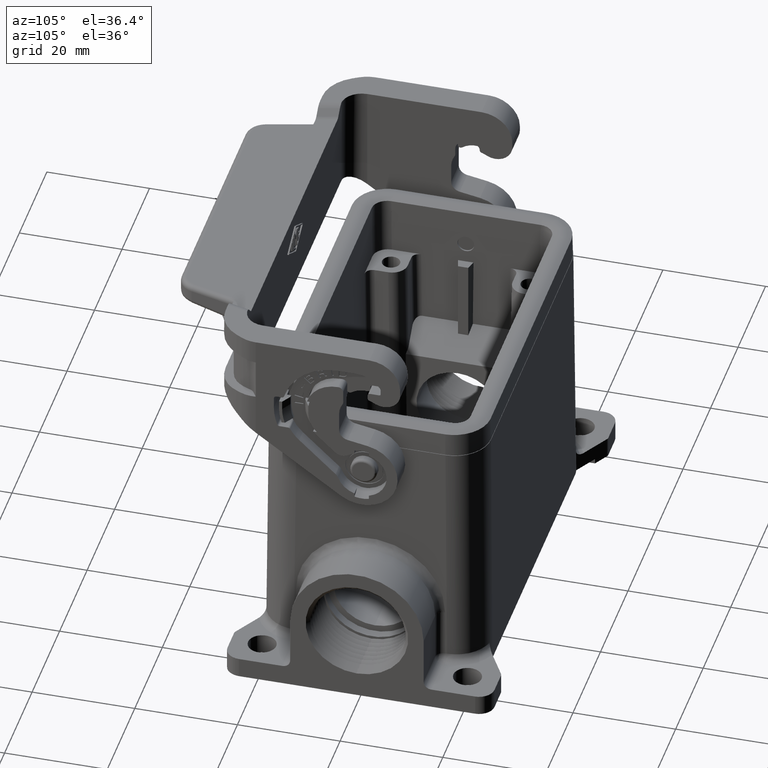
[diagram: clean part render]
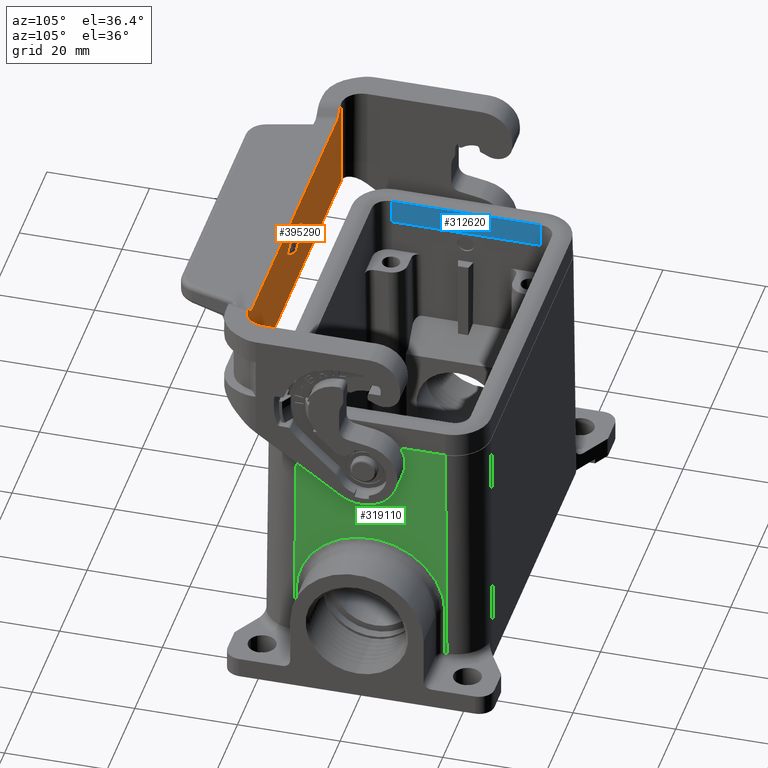
[diagram: same view with three faces highlighted in distinct colors, each labeled with its STEP entity id]
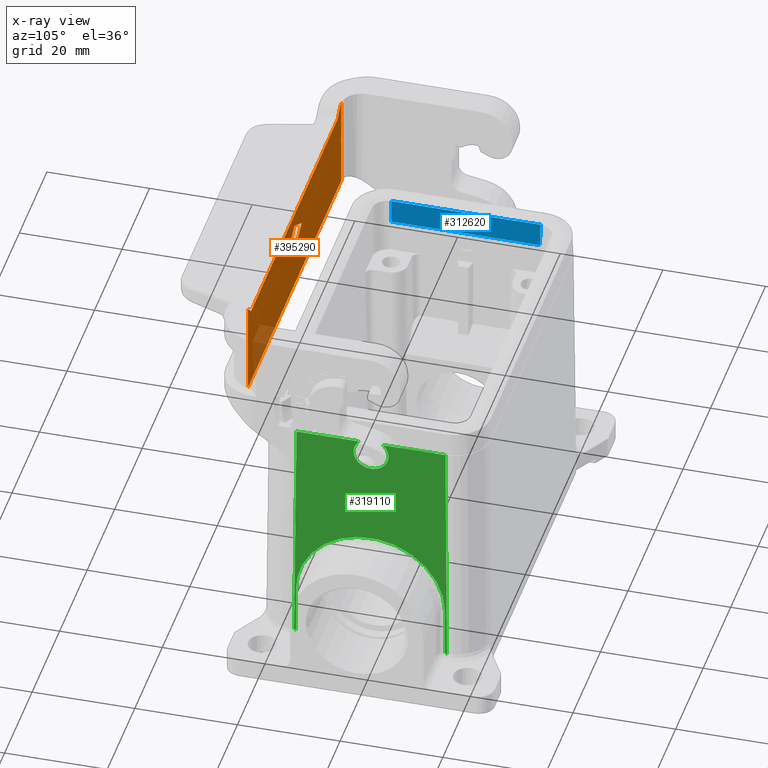
[diagram: x-ray of the same camera — body ghosted, the three highlighted faces saturated]
A machine part, auxiliary view with three faces highlighted in distinct colors.
The next image is the same camera in x-ray (body ghosted, the three faces saturated) — at least one of them is partly hidden behind the body in this view.
Their STEP definitions:

[orange] entity #395290 — the highlighted planar face has unit normal (-0, -1, 0).
#277350=CARTESIAN_POINT('',(66.5749300000854,8.52173468283081,
22.5000000000487));
#277360=VERTEX_POINT('',#277350);
#277410=CARTESIAN_POINT('',(66.5749300000854,-16.057090717364,
22.5000000000487));
#277420=DIRECTION('',(-2.2186712959341E-30,-1.,5.30477996090278E-16));
#277430=VECTOR('',#277420,1.);
#277440=LINE('',#277410,#277430);
#277450=CARTESIAN_POINT('',(66.5749300000857,71.2929093171692,
22.5000000000486));
#277460=VERTEX_POINT('',#277450);
#277470=EDGE_CURVE('',#277460,#277360,#277440,.T.);
#342020=CARTESIAN_POINT('',(66.5749300000855,-26.3070907173639,
-71.7743606791207));
#342030=DIRECTION('',(1.61461529201902E-15,-0.719254596676405,
-0.694746590606865));
#342040=VECTOR('',#342030,1.);
#342050=LINE('',#342020,#342040);
#342060=CARTESIAN_POINT('',(66.5749300000853,72.7570109323068,
23.9142135624216));
#342070=VERTEX_POINT('',#342060);
#342080=EDGE_CURVE('',#342070,#277460,#342050,.T.);
#393080=CARTESIAN_POINT('',(66.5749300000854,5.69290928263613,
24.4338279860379));
#393090=VERTEX_POINT('',#393080);
#393190=CARTESIAN_POINT('',(66.5749300000854,5.69290928263609,
6.28471444941555));
#393200=VERTEX_POINT('',#393190);
#393230=CARTESIAN_POINT('',(66.5749300000851,5.69290928263633,
131.732226182514));
#393240=DIRECTION('',(2.22754688718613E-15,-1.90949043772846E-15,-1.));
#393250=VECTOR('',#393240,1.);
#393260=LINE('',#393230,#393250);
#393270=EDGE_CURVE('',#393090,#393200,#393260,.T.);
#393480=CARTESIAN_POINT('',(66.5749300000855,7.78968387526194,
22.7928932188621));
#393490=VERTEX_POINT('',#393480);
#393540=CARTESIAN_POINT('',(66.5749300000854,8.5217346828308,
23.5000000000487));
#393550=DIRECTION('',(1.,-9.36772324949952E-31,2.22754688718613E-15));
#393560=DIRECTION('',(-1.8735446498999E-30,-1.,4.22498147828761E-16));
#393570=AXIS2_PLACEMENT_3D('',#393540,#393550,#393560);
#393580=ELLIPSE('',#393570,1.03527618041008,1.);
#393590=EDGE_CURVE('',#393490,#277360,#393580,.T.);
#393900=CARTESIAN_POINT('',(66.5749300000855,6.62880763296551,
23.9142135624216));
#393910=VERTEX_POINT('',#393900);
#393940=CARTESIAN_POINT('',(66.5749300000854,-5.80709071736398,
35.9263689521105));
#393950=DIRECTION('',(1.54373893237295E-15,0.719254596676404,
-0.694746590606866));
#393960=VECTOR('',#393950,1.);
#393970=LINE('',#393940,#393960);
#393980=EDGE_CURVE('',#393910,#393490,#393970,.T.);
#394170=CARTESIAN_POINT('',(66.5749300000854,-5.30709097970838,
11.4173116978688));
#394180=DIRECTION('',(1.,-9.38399073869837E-31,2.22754688718613E-15));
#394190=DIRECTION('',(-2.12006368278147E-30,-1.,5.30477996090278E-16));
#394200=AXIS2_PLACEMENT_3D('',#394170,#394180,#394190);
#394210=PLANE('',#394200);
#394220=CARTESIAN_POINT('',(66.5749300000854,39.6929092826362,
19.6923572247321));
#394230=DIRECTION('',(-1.,9.12120421661795E-31,-2.22754688718613E-15));
#394240=DIRECTION('',(-9.12120421661795E-31,-1.,-9.86076131526265E-32));
#394250=AXIS2_PLACEMENT_3D('',#394220,#394230,#394240);
#394260=CIRCLE('',#394250,0.199999999999962);
#394270=CARTESIAN_POINT('',(66.5749300000854,39.5936584446988,
19.8659926795468));
#394280=VERTEX_POINT('',#394270);
#394290=CARTESIAN_POINT('',(66.5749300000854,39.7921584503296,
19.8659936342554));
#394300=VERTEX_POINT('',#394290);
#394310=EDGE_CURVE('',#394280,#394300,#394260,.T.);
#394320=ORIENTED_EDGE('',*,*,#394310,.F.);
#394330=CARTESIAN_POINT('',(66.5749300000853,-16.057090717364,
51.78897287237));
#394340=DIRECTION('',(-1.15133348991819E-15,-0.868182047616834,
0.496245838467025));
#394350=VECTOR('',#394340,1.);
#394360=LINE('',#394330,#394350);
#394370=CARTESIAN_POINT('',(66.5749300000854,44.8424779093377,
16.9792718673849));
#394380=VERTEX_POINT('',#394370);
#394390=EDGE_CURVE('',#394380,#394300,#394360,.T.);
#394400=ORIENTED_EDGE('',*,*,#394390,.T.);
#394410=CARTESIAN_POINT('',(66.5749300000854,44.7927982023722,
16.8923572247322));
#394420=DIRECTION('',(-1.,9.12120421661795E-31,-2.22754688718613E-15));
#394430=DIRECTION('',(-9.12120421661795E-31,-1.,-9.86076131526265E-32));
#394440=AXIS2_PLACEMENT_3D('',#394410,#394420,#394430);
#394450=CIRCLE('',#394440,0.10011108026408);
#394460=CARTESIAN_POINT('',(66.5749300000854,44.8424779093377,
16.8054425820794));
#394470=VERTEX_POINT('',#394460);
#394480=EDGE_CURVE('',#394380,#394470,#394450,.T.);
#394490=ORIENTED_EDGE('',*,*,#394480,.F.);
#394500=CARTESIAN_POINT('',(66.5749300000855,-16.0570907173639,
-18.0042584229043));
#394510=DIRECTION('',(-1.10550330049633E-15,0.868182047616843,
0.49624583846701));
#394520=VECTOR('',#394510,1.);
#394530=LINE('',#394500,#394520);
#394540=CARTESIAN_POINT('',(66.5749300000854,39.7921584503297,
13.9187208152089));
#394550=VERTEX_POINT('',#394540);
#394560=EDGE_CURVE('',#394550,#394470,#394530,.T.);
#394570=ORIENTED_EDGE('',*,*,#394560,.T.);
#394580=CARTESIAN_POINT('',(66.5749300000854,39.6929092826363,
14.0923572247321));
#394590=DIRECTION('',(-1.,9.12120421661795E-31,-2.22754688718613E-15));
#394600=DIRECTION('',(-9.12120421661795E-31,-1.,-9.86076131526265E-32));
#394610=AXIS2_PLACEMENT_3D('',#394580,#394590,#394600);
#394620=CIRCLE('',#394610,0.199999999999876);
#394630=CARTESIAN_POINT('',(66.5749300000854,39.5936584446989,
13.9187217699175));
#394640=VERTEX_POINT('',#394630);
#394650=EDGE_CURVE('',#394550,#394640,#394620,.T.);
#394660=ORIENTED_EDGE('',*,*,#394650,.F.);
#394670=CARTESIAN_POINT('',(66.5749300000853,-16.057090717364,
45.7289502286035));
#394680=DIRECTION('',(1.1513441173152E-15,0.868177274073495,
-0.496254189687418));
#394690=VECTOR('',#394680,1.);
#394700=LINE('',#394670,#394690);
#394710=CARTESIAN_POINT('',(66.5749300000854,34.5432838636675,
16.8055394973248));
#394720=VERTEX_POINT('',#394710);
#394730=EDGE_CURVE('',#394720,#394640,#394700,.T.);
#394740=ORIENTED_EDGE('',*,*,#394730,.T.);
#394750=CARTESIAN_POINT('',(66.5749300000854,34.5929092826363,
16.8923572247322));
#394760=DIRECTION('',(-1.,9.12120421661795E-31,-2.22754688718613E-15));
#394770=DIRECTION('',(-9.12120421661795E-31,-1.,-9.86076131526265E-32));
#394780=AXIS2_PLACEMENT_3D('',#394750,#394760,#394770);
#394790=CIRCLE('',#394780,0.100000000000002);
#394800=CARTESIAN_POINT('',(66.5749300000854,34.5432838636675,
16.9791749521395));
#394810=VERTEX_POINT('',#394800);
#394820=EDGE_CURVE('',#394720,#394810,#394790,.T.);
#394830=ORIENTED_EDGE('',*,*,#394820,.F.);
#394840=CARTESIAN_POINT('',(66.5749300000854,-16.0570907173639,
-11.9442357791376));
#394850=DIRECTION('',(1.1332712815886E-15,-0.868177274073506,
-0.496254189687399));
#394860=VECTOR('',#394850,1.);
#394870=LINE('',#394840,#394860);
#394880=EDGE_CURVE('',#394280,#394810,#394870,.T.);
#394890=ORIENTED_EDGE('',*,*,#394880,.T.);
#394900=EDGE_LOOP('',(#394890,#394830,#394740,#394660,#394570,#394490,
#394400,#394320));
#394910=FACE_BOUND('',#394900,.T.);
#394920=CARTESIAN_POINT('',(66.5749300000854,-16.057090717364,
6.28471444941553));
#394930=DIRECTION('',(-6.16297582203915E-31,1.,7.18125577116239E-16));
#394940=VECTOR('',#394930,1.);
#394950=LINE('',#394920,#394940);
#394960=CARTESIAN_POINT('',(66.5749300000854,73.6929092826363,
6.28471444941559));
#394970=VERTEX_POINT('',#394960);
#394980=EDGE_CURVE('',#393200,#394970,#394950,.T.);
#394990=ORIENTED_EDGE('',*,*,#394980,.F.);
#395000=CARTESIAN_POINT('',(66.5749300000851,73.6929092826362,
131.732226182514));
#395010=DIRECTION('',(2.22754688718613E-15,8.48534445547907E-16,-1.));
#395020=VECTOR('',#395010,1.);
#395030=LINE('',#395000,#395020);
#395040=CARTESIAN_POINT('',(66.5749300000854,73.6929092826363,
24.4338279860378));
#395050=VERTEX_POINT('',#395040);
#395060=EDGE_CURVE('',#395050,#394970,#395030,.T.);
#395070=ORIENTED_EDGE('',*,*,#395060,.T.);
#395080=CARTESIAN_POINT('',(66.5749300000854,74.2211125474446,
22.5000000000485));
#395090=DIRECTION('',(1.,-9.36772324949952E-31,2.22754688718613E-15));
#395100=DIRECTION('',(-2.12006368278147E-30,-1.,5.3447045820802E-16));
#395110=AXIS2_PLACEMENT_3D('',#395080,#395090,#395100);
#395120=ELLIPSE('',#395110,2.07055236082017,2.);
#395130=EDGE_CURVE('',#395050,#342070,#395120,.T.);
#395140=ORIENTED_EDGE('',*,*,#395130,.F.);
#395150=ORIENTED_EDGE('',*,*,#342080,.F.);
#395160=ORIENTED_EDGE('',*,*,#277470,.F.);
#395170=ORIENTED_EDGE('',*,*,#393590,.T.);
#395180=ORIENTED_EDGE('',*,*,#393980,.T.);
#395190=CARTESIAN_POINT('',(66.5749300000854,5.16470601782774,
22.5000000000485));
#395200=DIRECTION('',(1.,-9.36772324949952E-31,2.22754688718613E-15));
#395210=DIRECTION('',(-1.8735446498999E-30,-1.,4.22498147828761E-16));
#395220=AXIS2_PLACEMENT_3D('',#395190,#395200,#395210);
#395230=ELLIPSE('',#395220,2.07055236082017,2.);
#395240=EDGE_CURVE('',#393910,#393090,#395230,.T.);
#395250=ORIENTED_EDGE('',*,*,#395240,.F.);
#395260=ORIENTED_EDGE('',*,*,#393270,.F.);
#395270=EDGE_LOOP('',(#395260,#395250,#395180,#395170,#395160,#395150,
#395140,#395070,#394990));
#395280=FACE_OUTER_BOUND('',#395270,.T.);
#395290=ADVANCED_FACE('',(#394910,#395280),#394210,.F.);

[blue] entity #312620 — the highlighted planar face has unit normal (0.9998, 0, 0.0175).
#13180=CARTESIAN_POINT('',(56.2753869145308,7.50732200000003,
-2.1049828546893E-13));
#13190=VERTEX_POINT('',#13180);
#13240=CARTESIAN_POINT('',(-44.77507,7.50732200000003,
-2.1049828546893E-13));
#13250=DIRECTION('',(-1.,-2.32838527066786E-34,0.));
#13260=VECTOR('',#13250,1.);
#13270=LINE('',#13240,#13260);
#13280=CARTESIAN_POINT('',(27.3744730854692,7.50732200000003,
-2.1049828546893E-13));
#13290=VERTEX_POINT('',#13280);
#13300=EDGE_CURVE('',#13190,#13290,#13270,.T.);
#14710=CARTESIAN_POINT('',(27.2922547231169,7.42510363764777,
4.71028682450602));
#14720=VERTEX_POINT('',#14710);
#16190=CARTESIAN_POINT('',(27.284620646505,7.41746956103586,
5.14764278068794));
#16200=DIRECTION('',(0.0174497491606827,0.0174497491606827,
-0.999695459881888));
#16210=VECTOR('',#16200,1.);
#16220=LINE('',#16190,#16210);
#16230=EDGE_CURVE('',#14720,#13290,#16220,.T.);
#17730=CARTESIAN_POINT('',(56.3576052768831,7.42510363764777,
4.71028682450602));
#17740=VERTEX_POINT('',#17730);
#17770=CARTESIAN_POINT('',(56.365239353495,7.41746956103586,
5.14764278068794));
#17780=DIRECTION('',(0.0174497491606827,-0.0174497491606827,
0.999695459881888));
#17790=VECTOR('',#17780,1.);
#17800=LINE('',#17770,#17790);
#17810=EDGE_CURVE('',#13190,#17740,#17800,.T.);
#28650=CARTESIAN_POINT('',(-44.77507,7.42510363764775,4.710286824506));
#28660=DIRECTION('',(-1.,1.1849005271891E-32,-6.9216836767112E-31));
#28670=VECTOR('',#28660,1.);
#28680=LINE('',#28650,#28670);
#28690=EDGE_CURVE('',#17740,#14720,#28680,.T.);
#312510=CARTESIAN_POINT('',(-44.77507,7.50732200000003,
-2.1049828546893E-13));
#312520=DIRECTION('',(-2.32803064631335E-34,0.999847695156391,
0.0174524064372835));
#312530=DIRECTION('',(1.,2.32838527066786E-34,0.));
#312540=AXIS2_PLACEMENT_3D('',#312510,#312520,#312530);
#312550=PLANE('',#312540);
#312560=ORIENTED_EDGE('',*,*,#13300,.T.);
#312570=ORIENTED_EDGE('',*,*,#17810,.F.);
#312580=ORIENTED_EDGE('',*,*,#28690,.F.);
#312590=ORIENTED_EDGE('',*,*,#16230,.F.);
#312600=EDGE_LOOP('',(#312590,#312580,#312570,#312560));
#312610=FACE_OUTER_BOUND('',#312600,.T.);
#312620=ADVANCED_FACE('',(#312610),#312550,.T.);

[green] entity #319110 — the highlighted planar face has unit normal (1, 0, 0.0087).
#110=CARTESIAN_POINT('',(27.3246634614492,76.407322,0.));
#120=VERTEX_POINT('',#110);
#170=CARTESIAN_POINT('',(0.,76.407322,0.));
#180=DIRECTION('',(1.,0.,0.));
#190=VECTOR('',#180,1.);
#200=LINE('',#170,#190);
#210=CARTESIAN_POINT('',(39.5205862756395,76.407322,1.46549439250521E-14
));
#220=VERTEX_POINT('',#210);
#230=EDGE_CURVE('',#120,#220,#200,.T.);
#1090=CARTESIAN_POINT('',(44.1292737243605,76.407322,
1.46549439250521E-14));
#1100=VERTEX_POINT('',#1090);
#1130=CARTESIAN_POINT('',(56.3251965385508,76.407322,0.));
#1140=VERTEX_POINT('',#1130);
#1150=EDGE_CURVE('',#1100,#1140,#200,.T.);
#318020=CARTESIAN_POINT('',(63.32493,76.407322,0.));
#318030=DIRECTION('',(-0.,0.999961923064171,0.00872653549837394));
#318040=DIRECTION('',(1.,0.,0.));
#318050=AXIS2_PLACEMENT_3D('',#318020,#318030,#318040);
#318060=PLANE('',#318050);
#318070=CARTESIAN_POINT('',(27.32493,76.4074362329823,
-0.0130898032475609));
#318080=DIRECTION('',(0.,-0.00872653549837394,0.999961923064171));
#318090=VECTOR('',#318080,1.);
#318100=LINE('',#318070,#318090);
#318110=CARTESIAN_POINT('',(27.32493,76.8088721513572,-46.0130898032476)
);
#318120=VERTEX_POINT('',#318110);
#318130=CARTESIAN_POINT('',(27.32493,76.725966907345,-36.5130898032476))
;
#318140=VERTEX_POINT('',#318130);
#318150=EDGE_CURVE('',#318120,#318140,#318100,.T.);
#318160=ORIENTED_EDGE('',*,*,#318150,.F.);
#318170=CARTESIAN_POINT('',(27.32493,76.725966907345,-36.5130898032476))
;
#318180=CARTESIAN_POINT('',(27.3249299931796,76.7253161365206,
-36.4385188529285));
#318190=CARTESIAN_POINT('',(27.3255052100083,76.7246653754584,
-36.3639490212643));
#318200=CARTESIAN_POINT('',(27.3319115375464,76.7210419928671,
-35.9487505012209));
#318210=CARTESIAN_POINT('',(27.3491747524682,76.7180695320457,
-35.6081402281357));
#318220=CARTESIAN_POINT('',(27.4812943677985,76.7046896257576,
-34.074954827727));
#318230=CARTESIAN_POINT('',(27.7315582049131,76.6944276776374,
-32.8990520449294));
#318240=CARTESIAN_POINT('',(28.5155296999921,76.6746752970227,
-30.635653413453));
#318250=CARTESIAN_POINT('',(29.0462181852548,76.665260928831,
-29.5568736705437));
#318260=CARTESIAN_POINT('',(30.3607253735458,76.6477864910288,
-27.5545014310251));
#318270=CARTESIAN_POINT('',(31.139471418905,76.6397936513064,
-26.6386127165343));
#318280=CARTESIAN_POINT('',(32.9043932032024,76.6256616913577,
-25.0192505023262));
#318290=CARTESIAN_POINT('',(33.8837724354746,76.6195769883624,
-24.3220125996628));
#318300=CARTESIAN_POINT('',(35.9916050938939,76.6096483173953,
-23.1842995959585));
#318310=CARTESIAN_POINT('',(37.1119406937756,76.6058425692067,
-22.748204048295));
#318320=CARTESIAN_POINT('',(39.4342522004192,76.6007222142623,
-22.1614694870344));
#318330=CARTESIAN_POINT('',(40.627285077483,76.599427324379,
-22.0130898032476));
#318340=CARTESIAN_POINT('',(43.0225749224287,76.599427324379,
-22.0130898032476));
#318350=CARTESIAN_POINT('',(44.2156077994054,76.6007222142621,
-22.1614694870125));
#318360=CARTESIAN_POINT('',(46.5379193058885,76.6058425692057,
-22.7482040481876));
#318370=CARTESIAN_POINT('',(47.6582549056992,76.6096483173938,
-23.1842995957884));
#318380=CARTESIAN_POINT('',(49.7660875640822,76.6195769883599,
-24.3220125993741));
#318390=CARTESIAN_POINT('',(50.7454667963798,76.6256616913549,
-25.019250502002));
#318400=CARTESIAN_POINT('',(52.5103885807361,76.639793651303,
-26.6386127161458));
#318410=CARTESIAN_POINT('',(53.2891346261284,76.6477864910252,
-27.5545014306084));
#318420=CARTESIAN_POINT('',(54.6036418144924,76.6652609288269,
-29.5568736700792));
#318430=CARTESIAN_POINT('',(55.1343302997941,76.6746752970185,
-30.6356534129688));
#318440=CARTESIAN_POINT('',(55.9183017949555,76.6944276776329,
-32.8990520444167));
#318450=CARTESIAN_POINT('',(56.1685656321127,76.7046896257531,
-34.074954827205));
#318460=CARTESIAN_POINT('',(56.300685247514,76.7180695320427,
-35.6081402277843));
#318470=CARTESIAN_POINT('',(56.3179484624509,76.7210419928656,
-35.9487505010451));
#318480=CARTESIAN_POINT('',(56.3243547899917,76.7246653754585,
-36.3639490212643));
#318490=CARTESIAN_POINT('',(56.3249300068204,76.7253161365206,
-36.4385188529284));
#318500=CARTESIAN_POINT('',(56.32493,76.725966907345,-36.5130898032476))
;
#318510=B_SPLINE_CURVE_WITH_KNOTS('',3,(#318170,#318180,#318190,#318200,
#318210,#318220,#318230,#318240,#318250,#318260,#318270,#318280,#318290,
#318300,#318310,#318320,#318330,#318340,#318350,#318360,#318370,#318380,
#318390,#318400,#318410,#318420,#318430,#318440,#318450,#318460,#318470,
#318480,#318490,#318500),.UNSPECIFIED.,.F.,.F.,(4,2,2,2,2,2,2,2,2,2,2,2,
2,2,2,2,4),(0.,0.212210779787105,1.18169443604258,4.58462173922191,
7.98754594506585,11.3903216523416,14.7930923705967,18.1958405535293,
21.598586357808,25.0013321618359,28.4040803445186,31.8068510627776,
35.2096267700617,38.6125509759174,42.0154782791102,42.9849619358702,
43.1971727156583),.UNSPECIFIED.);
#318520=CARTESIAN_POINT('',(56.32493,76.725966907345,-36.5130898032476))
;
#318530=VERTEX_POINT('',#318520);
#318540=EDGE_CURVE('',#318140,#318530,#318510,.T.);
#318550=ORIENTED_EDGE('',*,*,#318540,.F.);
#318560=CARTESIAN_POINT('',(56.32493,76.4074362329823,
-0.0130898032475609));
#318570=DIRECTION('',(0.,-0.00872653549837394,0.999961923064171));
#318580=VECTOR('',#318570,1.);
#318590=LINE('',#318560,#318580);
#318600=CARTESIAN_POINT('',(56.32493,76.8088721513573,-46.0130898032476)
);
#318610=VERTEX_POINT('',#318600);
#318620=EDGE_CURVE('',#318610,#318530,#318590,.T.);
#318630=ORIENTED_EDGE('',*,*,#318620,.T.);
#318640=CARTESIAN_POINT('',(0.,76.8088721513573,-46.0130898032476));
#318650=DIRECTION('',(1.,0.,0.));
#318660=VECTOR('',#318650,1.);
#318670=LINE('',#318640,#318660);
#318680=CARTESIAN_POINT('',(56.7267466899081,76.8088721513572,
-46.0130898032476));
#318690=VERTEX_POINT('',#318680);
#318700=EDGE_CURVE('',#318610,#318690,#318670,.T.);
#318710=ORIENTED_EDGE('',*,*,#318700,.F.);
#318720=CARTESIAN_POINT('',(56.3246634512999,76.406788912749,
0.0610857484886176));
#318730=DIRECTION('',(-0.00872620324394422,-0.00872620324394422,
0.99992385047757));
#318740=VECTOR('',#318730,1.);
#318750=LINE('',#318720,#318740);
#318760=EDGE_CURVE('',#318690,#1140,#318750,.T.);
#318770=ORIENTED_EDGE('',*,*,#318760,.F.);
#318780=ORIENTED_EDGE('',*,*,#1150,.T.);
#318790=CARTESIAN_POINT('',(41.82493,76.4291391694769,-2.50000000000003)
);
#318800=DIRECTION('',(0.,0.999961923064171,0.00872653549837394));
#318810=DIRECTION('',(2.82493588580826E-30,0.00872653549837394,
-0.999961923064171));
#318820=AXIS2_PLACEMENT_3D('',#318790,#318800,#318810);
#318830=ELLIPSE('',#318820,3.4001294665115,3.4);
#318840=CARTESIAN_POINT('',(45.22493,76.4291391694769,-2.50000000000003)
);
#318850=VERTEX_POINT('',#318840);
#318860=EDGE_CURVE('',#1100,#318850,#318830,.T.);
#318870=ORIENTED_EDGE('',*,*,#318860,.F.);
#318880=CARTESIAN_POINT('',(38.42493,76.4291391694769,-2.50000000000003)
);
#318890=VERTEX_POINT('',#318880);
#318900=EDGE_CURVE('',#318850,#318890,#318830,.T.);
#318910=ORIENTED_EDGE('',*,*,#318900,.F.);
#318920=EDGE_CURVE('',#318890,#220,#318830,.T.);
#318930=ORIENTED_EDGE('',*,*,#318920,.F.);
#318940=ORIENTED_EDGE('',*,*,#230,.T.);
#318950=CARTESIAN_POINT('',(27.3251965487002,76.406788912749,
0.0610857484886176));
#318960=DIRECTION('',(0.00872620324394422,-0.00872620324394422,
0.99992385047757));
#318970=VECTOR('',#318960,1.);
#318980=LINE('',#318950,#318970);
#318990=CARTESIAN_POINT('',(26.9231133100919,76.8088721513573,
-46.0130898032476));
#319000=VERTEX_POINT('',#318990);
#319010=EDGE_CURVE('',#319000,#120,#318980,.T.);
#319020=ORIENTED_EDGE('',*,*,#319010,.T.);
#319030=CARTESIAN_POINT('',(0.,76.8088721513573,-46.0130898032476));
#319040=DIRECTION('',(1.,0.,0.));
#319050=VECTOR('',#319040,1.);
#319060=LINE('',#319030,#319050);
#319070=EDGE_CURVE('',#319000,#318120,#319060,.T.);
#319080=ORIENTED_EDGE('',*,*,#319070,.F.);
#319090=EDGE_LOOP('',(#319080,#319020,#318940,#318930,#318910,#318870,
#318780,#318770,#318710,#318630,#318550,#318160));
#319100=FACE_OUTER_BOUND('',#319090,.T.);
#319110=ADVANCED_FACE('',(#319100),#318060,.T.);